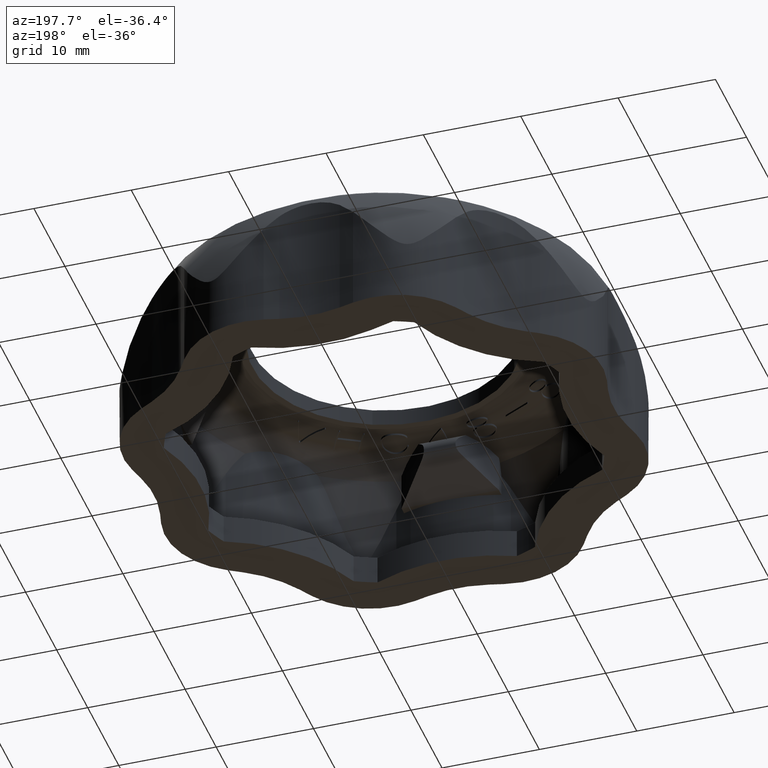
[diagram: clean part render]
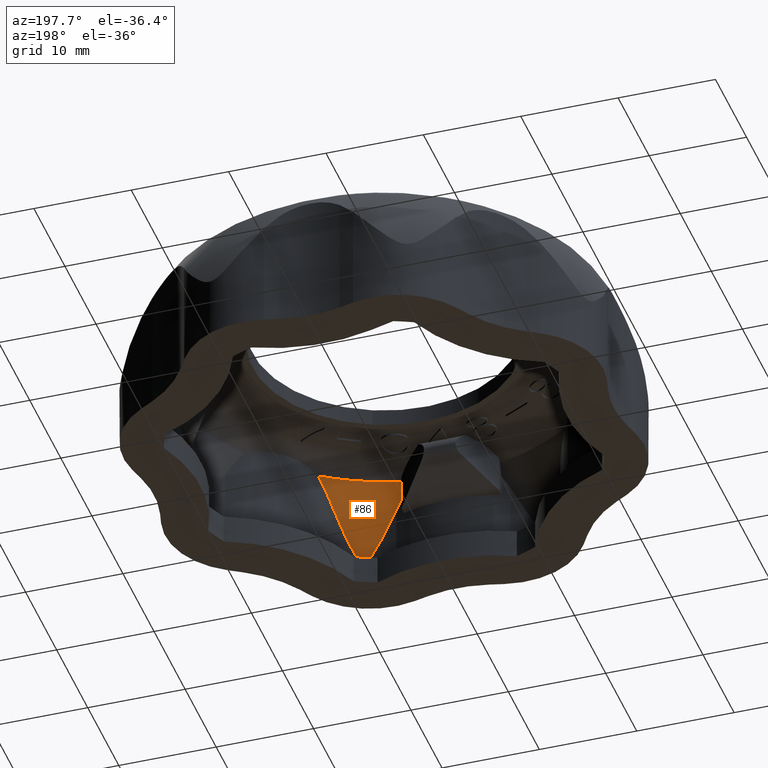
[diagram: same view with one face highlighted and labeled with its STEP entity id]
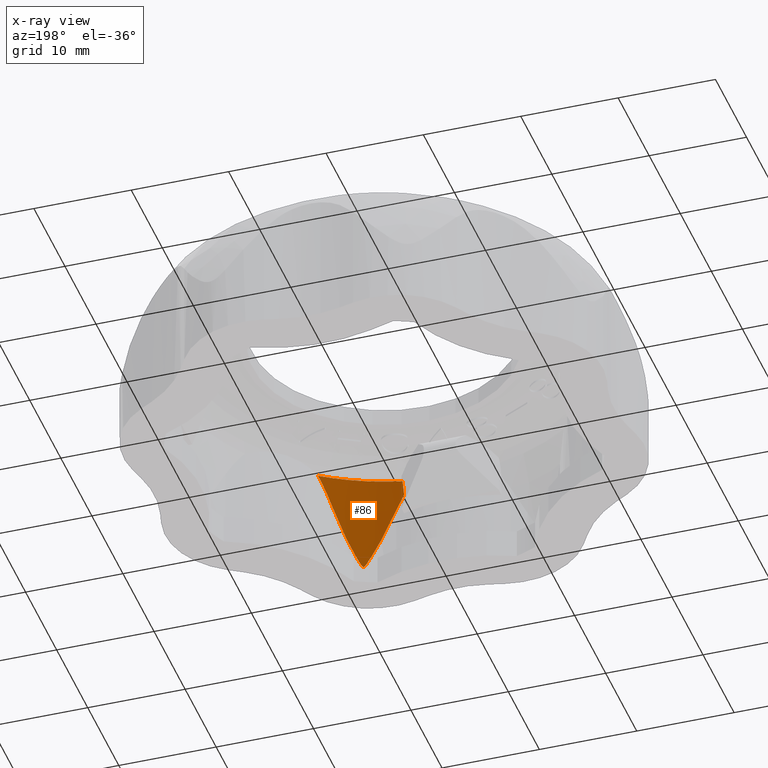
[diagram: x-ray of the same camera — body ghosted, the highlighted face saturated]
A machine part, auxiliary view. The second image highlights one B-rep face of the part: STEP entity #86.
The next image is the same camera in x-ray: the body ghosted, the highlighted face saturated — about 0% of this face is hidden behind the body in this view.
In plain terms, the highlighted face is a freeform B-spline surface patch.
Its self-contained STEP definition (entity closure, byte-faithful):
#86 = ADVANCED_FACE( '', ( #2330 ), #2331, .F. );
#2330 = FACE_OUTER_BOUND( '', #6834, .T. );
#2331 = ( B_SPLINE_SURFACE( 3, 3, ( ( #6836, #6837, #6838, #6839 ), ( #6840, #6841, #6842, #6843 ), ( #6844, #6845, #6846, #6847 ), ( #6848, #6849, #6850, #6851 ) ), .UNSPECIFIED., .F., .F., .F. )B_SPLINE_SURFACE_WITH_KNOTS( ( 4, 4 ), ( 4, 4 ), ( 6.11033999780970, 6.49642130392665 ), ( 0.0107259049152975, 0.385938804095614 ), .UNSPECIFIED. )RATIONAL_B_SPLINE_SURFACE( ( ( 1.00000000000000, 0.987616961356048, 0.987616961356048, 1.00000000000000 ), ( 0.988302309986862, 0.976064124290388, 0.976064124290388, 0.988302309986862 ), ( 0.988302309986862, 0.976064124290388, 0.976064124290388, 0.988302309986862 ), ( 1.00000000000000, 0.987616961356048, 0.987616961356048, 1.00000000000000 ) ) )BOUNDED_SURFACE(  )REPRESENTATION_ITEM( '' )GEOMETRIC_REPRESENTATION_ITEM(  )SURFACE(  ) );
#6834 = EDGE_LOOP( '', ( #13229, #13230, #13231, #13232, #13233, #13234 ) );
#6836 = CARTESIAN_POINT( '', ( 4.84441773717327, -21.6785559962960, 12.7352901868200 ) );
#6837 = CARTESIAN_POINT( '', ( 7.65178132578201, -21.0512060027967, 12.7352901868200 ) );
#6838 = CARTESIAN_POINT( '', ( 10.2866460749545, -19.8969330339727, 12.7352901868200 ) );
#6839 = CARTESIAN_POINT( '', ( 12.6511290886590, -18.2586173101598, 12.7352901868200 ) );
#6840 = CARTESIAN_POINT( '', ( 5.10262524942012, -22.8340232405750, 9.82138124947525 ) );
#6841 = CARTESIAN_POINT( '', ( 8.05962134445471, -22.1732354863544, 9.82138124947525 ) );
#6842 = CARTESIAN_POINT( '', ( 10.8349244102427, -20.9574397571278, 9.82138124947525 ) );
#6843 = CARTESIAN_POINT( '', ( 13.3254343914471, -19.2318017893898, 9.82138124947525 ) );
#6844 = CARTESIAN_POINT( '', ( 5.23777907666701, -23.4388306645102, 6.73778231478010 ) );
#6845 = CARTESIAN_POINT( '', ( 8.27309747049152, -22.7605405483454, 6.73778231478010 ) );
#6846 = CARTESIAN_POINT( '', ( 11.1219103107145, -21.5125418965205, 6.73778231478010 ) );
#6847 = CARTESIAN_POINT( '', ( 13.6783867188664, -19.7411967556349, 6.73778231478010 ) );
#6848 = CARTESIAN_POINT( '', ( 5.24513625618829, -23.4717537188130, 3.59270633612322 ) );
#6849 = CARTESIAN_POINT( '', ( 8.28471817124970, -22.7925108510948, 3.59270633612322 ) );
#6850 = CARTESIAN_POINT( '', ( 11.1375325600644, -21.5427592138939, 3.59270633612322 ) );
#6851 = CARTESIAN_POINT( '', ( 13.6975998901703, -19.7689259756669, 3.59270633612322 ) );
#13229 = ORIENTED_EDGE( '', *, *, #31245, .T. );
#13230 = ORIENTED_EDGE( '', *, *, #32882, .T. );
#13231 = ORIENTED_EDGE( '', *, *, #32883, .T. );
#13232 = ORIENTED_EDGE( '', *, *, #32884, .T. );
#13233 = ORIENTED_EDGE( '', *, *, #32885, .T. );
#13234 = ORIENTED_EDGE( '', *, *, #32886, .F. );
#31245 = EDGE_CURVE( '', #37915, #37913, #37916, .T. );
#32882 = EDGE_CURVE( '', #37913, #41181, #41182, .T. );
#32883 = EDGE_CURVE( '', #41181, #41183, #41184, .T. );
#32884 = EDGE_CURVE( '', #41183, #41185, #41186, .T. );
#32885 = EDGE_CURVE( '', #41185, #41187, #41188, .T. );
#32886 = EDGE_CURVE( '', #37915, #41187, #41189, .T. );
#37913 = VERTEX_POINT( '', #49080 );
#37915 = VERTEX_POINT( '', #49095 );
#37916 = CIRCLE( '', #49096, 22.2132431962733 );
#41181 = VERTEX_POINT( '', #57734 );
#41182 = B_SPLINE_CURVE_WITH_KNOTS( '', 3, ( #57735, #57736, #57737, #57738 ), .UNSPECIFIED., .F., .F., ( 4, 4 ), ( 2.72903587099108E-007, 0.000377169302390143 ), .UNSPECIFIED. );
#41183 = VERTEX_POINT( '', #57739 );
#41184 = B_SPLINE_CURVE_WITH_KNOTS( '', 3, ( #57740, #57741, #57742, #57743 ), .UNSPECIFIED., .F., .F., ( 4, 4 ), ( 3.94874866669323E-007, 0.00299767024722531 ), .UNSPECIFIED. );
#41185 = VERTEX_POINT( '', #57744 );
#41186 = B_SPLINE_CURVE_WITH_KNOTS( '', 3, ( #57745, #57746, #57747, #57748, #57749, #57750, #57751, #57752, #57753, #57754, #57755, #57756, #57757, #57758, #57759, #57760, #57761, #57762, #57763, #57764, #57765, #57766, #57767, #57768, #57769, #57770, #57771, #57772, #57773, #57774, #57775, #57776 ), .UNSPECIFIED., .F., .F., ( 4, 2, 2, 2, 2, 2, 2, 2, 2, 2, 2, 2, 2, 2, 2, 4 ), ( 5.42593555637306E-007, 0.00360129002970594, 0.00540166374778110, 0.00630185060681867, 0.00675194403633746, 0.00697699075109686, 0.00708951410847655, 0.00714577578716640, 0.00720203746585625, 0.00731456082323595, 0.00742708418061564, 0.00765213089537504, 0.00810222432489382, 0.00900241118393139, 0.0108027849020065, 0.0144035323381568 ), .UNSPECIFIED. );
#41187 = VERTEX_POINT( '', #57777 );
#41188 = B_SPLINE_CURVE_WITH_KNOTS( '', 3, ( #57778, #57779, #57780, #57781 ), .UNSPECIFIED., .F., .F., ( 4, 4 ), ( 5.43796616624023E-007, 0.00173292549901644 ), .UNSPECIFIED. );
#41189 = B_SPLINE_CURVE_WITH_KNOTS( '', 3, ( #57782, #57783, #57784, #57785 ), .UNSPECIFIED., .F., .F., ( 4, 4 ), ( 2.16533371406955E-007, 0.00137531699740507 ), .UNSPECIFIED. );
#49080 = CARTESIAN_POINT( '', ( 12.6093016487563, -18.2875281333333, 12.7352901868200 ) );
#49095 = CARTESIAN_POINT( '', ( 4.99999956205454, -21.6432016503160, 12.7352901868200 ) );
#49096 = AXIS2_PLACEMENT_3D( '', #76350, #76351, #76352 );
#57734 = CARTESIAN_POINT( '', ( 12.4879580387797, -18.5064738385106, 12.4535289369293 ) );
#57735 = CARTESIAN_POINT( '', ( 12.6093016487563, -18.2875281333332, 12.7352901868200 ) );
#57736 = CARTESIAN_POINT( '', ( 12.5672320866325, -18.3619643595558, 12.6432421939311 ) );
#57737 = CARTESIAN_POINT( '', ( 12.5268126565438, -18.4349658607538, 12.5492387097947 ) );
#57738 = CARTESIAN_POINT( '', ( 12.4879580387796, -18.5064738385106, 12.4535289369293 ) );
#57739 = CARTESIAN_POINT( '', ( 11.6834587291401, -19.9870721905090, 9.97476532600367 ) );
#57740 = CARTESIAN_POINT( '', ( 12.4879580387794, -18.5064738385111, 12.4535289369297 ) );
#57741 = CARTESIAN_POINT( '', ( 12.1771670481451, -19.0784527364859, 11.6879646956543 ) );
#57742 = CARTESIAN_POINT( '', ( 11.9091498783192, -19.5717108104167, 10.8614976276250 ) );
#57743 = CARTESIAN_POINT( '', ( 11.6834587291401, -19.9870721905090, 9.97476532600364 ) );
#57744 = CARTESIAN_POINT( '', ( 5.87154147971593, -22.3944474835809, 9.97476416622804 ) );
#57745 = CARTESIAN_POINT( '', ( 11.6834587291401, -19.9870721905090, 9.97476532600364 ) );
#57746 = CARTESIAN_POINT( '', ( 11.4117309736280, -20.4871596308456, 8.90715557859284 ) );
#57747 = CARTESIAN_POINT( '', ( 11.0645334843122, -20.9245887346872, 7.84331348390315 ) );
#57748 = CARTESIAN_POINT( '', ( 10.4578780546566, -21.4780791751995, 6.24030306806730 ) );
#57749 = CARTESIAN_POINT( '', ( 10.2414499018477, -21.6453210474233, 5.70466909134245 ) );
#57750 = CARTESIAN_POINT( '', ( 9.89507691734421, -21.8699320661991, 4.89928439982513 ) );
#57751 = CARTESIAN_POINT( '', ( 9.77621933840324, -21.9403350573122, 4.63011146818964 ) );
#57752 = CARTESIAN_POINT( '', ( 9.58910809406892, -22.0405870108285, 4.22933184962575 ) );
#57753 = CARTESIAN_POINT( '', ( 9.52560332636677, -22.0729809172563, 4.09593742893373 ) );
#57754 = CARTESIAN_POINT( '', ( 9.42267328845335, -22.1224775366124, 3.90004343957840 ) );
#57755 = CARTESIAN_POINT( '', ( 9.38739971276200, -22.1390007593163, 3.83513647271959 ) );
#57756 = CARTESIAN_POINT( '', ( 9.32662467356101, -22.1664287720595, 3.74337635534139 ) );
#57757 = CARTESIAN_POINT( '', ( 9.30535939657835, -22.1758864012252, 3.71361043205219 ) );
#57758 = CARTESIAN_POINT( '', ( 9.26646188709903, -22.1927547948011, 3.67555625226870 ) );
#57759 = CARTESIAN_POINT( '', ( 9.25219433569028, -22.1988787843956, 3.66405188648175 ) );
#57760 = CARTESIAN_POINT( '', ( 9.22035006841188, -22.2123346750819, 3.64942675100687 ) );
#57761 = CARTESIAN_POINT( '', ( 9.20211485810663, -22.2199282421208, 3.64709803031623 ) );
#57762 = CARTESIAN_POINT( '', ( 9.15075718426013, -22.2409603873327, 3.66057373740201 ) );
#57763 = CARTESIAN_POINT( '', ( 9.12417191878206, -22.2514511783562, 3.68881578108534 ) );
#57764 = CARTESIAN_POINT( '', ( 9.07733207551559, -22.2696481802917, 3.74498736203454 ) );
#57765 = CARTESIAN_POINT( '', ( 9.05682435036667, -22.2774252788007, 3.77531364356699 ) );
#57766 = CARTESIAN_POINT( '', ( 8.99765543127500, -22.2994892726394, 3.86815264246806 ) );
#57767 = CARTESIAN_POINT( '', ( 8.96167587249166, -22.3123662761539, 3.93285907802048 ) );
#57768 = CARTESIAN_POINT( '', ( 8.85587217627367, -22.3490090904632, 4.12799815057754 ) );
#57769 = CARTESIAN_POINT( '', ( 8.78872266608644, -22.3705535568426, 4.26027084693853 ) );
#57770 = CARTESIAN_POINT( '', ( 8.58751371432609, -22.4306779715477, 4.65790516215055 ) );
#57771 = CARTESIAN_POINT( '', ( 8.45468906287460, -22.4643099459004, 4.92489734333081 ) );
#57772 = CARTESIAN_POINT( '', ( 8.05370673043083, -22.5488006094324, 5.72459072524317 ) );
#57773 = CARTESIAN_POINT( '', ( 7.78396275526718, -22.5829079080086, 6.25698416556302 ) );
#57774 = CARTESIAN_POINT( '', ( 6.96758018759146, -22.6191445833681, 7.85200462016004 ) );
#57775 = CARTESIAN_POINT( '', ( 6.41272935833087, -22.5545705908058, 8.91609013501770 ) );
#57776 = CARTESIAN_POINT( '', ( 5.87154147971584, -22.3944474835810, 9.97476416622800 ) );
#57777 = CARTESIAN_POINT( '', ( 4.99999956205454, -22.1365814951483, 11.4516699033175 ) );
#57778 = CARTESIAN_POINT( '', ( 5.87154147971595, -22.3944474835810, 9.97476416622806 ) );
#57779 = CARTESIAN_POINT( '', ( 5.60954503285792, -22.3169297287079, 10.4872826279311 ) );
#57780 = CARTESIAN_POINT( '', ( 5.31892382556284, -22.2309426713329, 10.9795085197986 ) );
#57781 = CARTESIAN_POINT( '', ( 4.99999956205450, -22.1365814951483, 11.4516699033175 ) );
#57782 = CARTESIAN_POINT( '', ( 4.99999956205450, -21.6432016503159, 12.7352901868199 ) );
#57783 = CARTESIAN_POINT( '', ( 4.99999956205450, -21.8197537186566, 12.3119211813901 ) );
#57784 = CARTESIAN_POINT( '', ( 4.99999956205450, -21.9842060639328, 11.8840449213702 ) );
#57785 = CARTESIAN_POINT( '', ( 4.99999956205450, -22.1365814951483, 11.4516699033175 ) );
#76350 = CARTESIAN_POINT( '', ( 0.000000000000000, 0.000000000000000, 12.7352901868200 ) );
#76351 = DIRECTION( '', ( 2.34318281388423E-017, -5.65694372839885E-017, 1.00000000000000 ) );
#76352 = DIRECTION( '', ( 0.382683432365090, -0.923879532511287, -6.12303176911189E-017 ) );